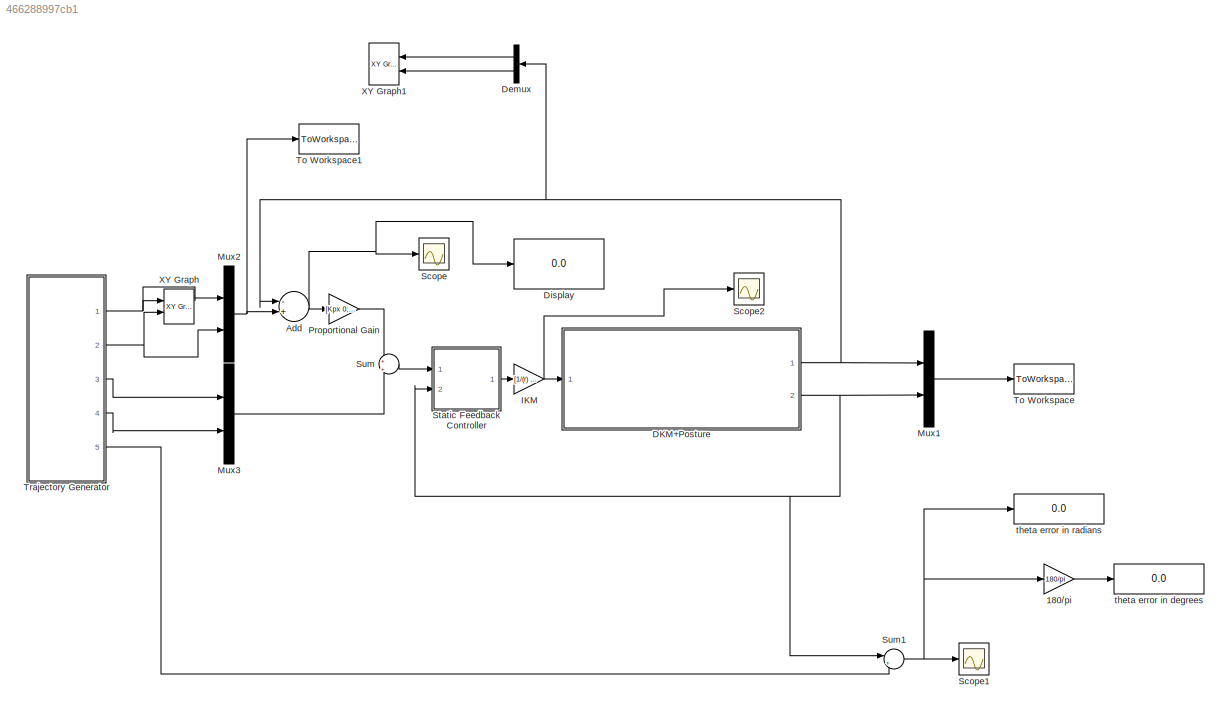
MODEL slx_466288997cb1
KIND model
CONFIG AbsTol = auto
CONFIG FixedStep = 0.01
CONFIG MaxStep = auto
CONFIG MinStep = auto
CONFIG RelTol = 1e-3
CONFIG SampleTimeConstraint = Unconstrained
CONFIG Solver = ode3
CONFIG SolverMode = Auto
CONFIG SolverName = ode3
CONFIG StartTime = 0.0
CONFIG StopTime = 30
BLOCK [Gain] 180//pi
  Gain = 180/pi
  Multiplication = Matrix(K*u)
  OutDataTypeStr = Inherit: Inherit via internal rule
  ParamDataTypeStr = Inherit: Inherit via internal rule
  SaturateOnIntegerOverflow = off
BLOCK [Sum] Add
  InputSameDT = off
  Inputs = -+
  OutDataTypeStr = Inherit: Inherit via internal rule
  Ports = [2, 1]
  SaturateOnIntegerOverflow = off
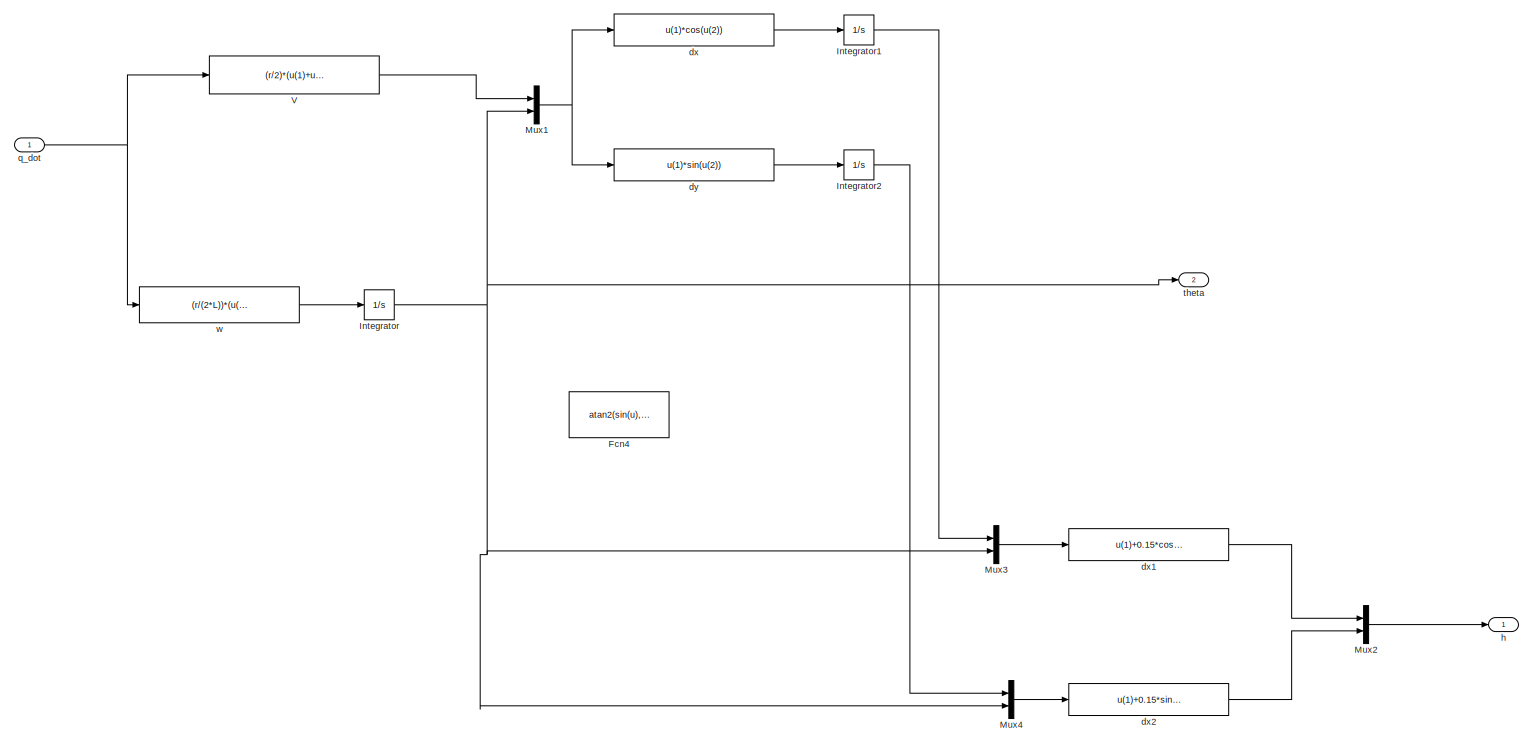
[diagram: DKM+Posture - part 1/1, most of the canvas]
BLOCK [SubSystem] DKM+Posture
  Ports = [1, 2]
  RequestExecContextInheritance = off
  Variant = off
BLOCK [Fcn] DKM+Posture/Fcn4
  Expr = atan2(sin(u),cos(u))
BLOCK [Integrator] DKM+Posture/Integrator
  InitialCondition = pi
  Ports = [1, 1]
BLOCK [Integrator] DKM+Posture/Integrator1
  InitialCondition = 2.45
  Ports = [1, 1]
BLOCK [Integrator] DKM+Posture/Integrator2
  Ports = [1, 1]
BLOCK [Mux] DKM+Posture/Mux1
  DisplayOption = bar
  Inputs = 2
  Ports = [2, 1]
BLOCK [Mux] DKM+Posture/Mux2
  DisplayOption = bar
  Inputs = 2
  Ports = [2, 1]
BLOCK [Mux] DKM+Posture/Mux3
  DisplayOption = bar
  Inputs = 2
  Ports = [2, 1]
BLOCK [Mux] DKM+Posture/Mux4
  DisplayOption = bar
  Inputs = 2
  Ports = [2, 1]
BLOCK [Fcn] DKM+Posture/V
  Expr = (r/2)*(u(1)+u(2))
BLOCK [Fcn] DKM+Posture/dx
  Expr = u(1)*cos(u(2))
BLOCK [Fcn] DKM+Posture/dx1
  Expr = u(1)+0.15*cos(u(2))
BLOCK [Fcn] DKM+Posture/dx2
  Expr = u(1)+0.15*sin(u(2))
BLOCK [Fcn] DKM+Posture/dy
  Expr = u(1)*sin(u(2))
BLOCK [Outport] DKM+Posture/h
  IconDisplay = Port number
BLOCK [Inport] DKM+Posture/q_dot
  IconDisplay = Port number
BLOCK [Outport] DKM+Posture/theta
  IconDisplay = Port number
  Port = 2
BLOCK [Fcn] DKM+Posture/w
  Expr = (r/(2*L))*(u(1)-u(2))
BLOCK [Demux] Demux
  DisplayOption = bar
  Outputs = 2
  Ports = [1, 2]
BLOCK [Display] Display
  Decimation = 1
  Ports = [1]
BLOCK [Gain] IKM
  Gain = [1/(r) L/(r);1/(r) -L/(r)]
  Multiplication = Matrix(K*u)
  OutDataTypeStr = Inherit: Inherit via internal rule
  ParamDataTypeStr = Inherit: Inherit via internal rule
  SaturateOnIntegerOverflow = off
BLOCK [Mux] Mux1
  DisplayOption = bar
  Inputs = 2
  Ports = [2, 1]
BLOCK [Mux] Mux2
  DisplayOption = bar
  Inputs = 2
  Ports = [2, 1]
BLOCK [Mux] Mux3
  DisplayOption = bar
  Inputs = 2
  Ports = [2, 1]
BLOCK [Gain] Proportional Gain
  Gain = [Kpx 0;0 Kpy]
  Multiplication = Matrix(K*u)
  OutDataTypeStr = Inherit: Inherit via internal rule
  ParamDataTypeStr = Inherit: Inherit via internal rule
  SaturateOnIntegerOverflow = off
BLOCK [Scope] Scope
  Ports = [1]
  ScopeSpecificationString = Simulink.scopes.TimeScopeBlockCfg('CurrentConfiguration', extmgr.ConfigurationSet(extmgr.Configuration('Core','General UI',true,'FigureColor',[0.156862745098039 0.156862745098039 0.156862745098039]),extmgr.Configuration('Core','Source UI',true),extmgr.Configuration('Sources','WiredSimulink',true,'DataLoggingSaveFormat','StructureWithTime','DataLoggingDecimation','1','DataLoggingDecimateData',true)...<+2783ch>
BLOCK [Scope] Scope1
  Ports = [1]
  ScopeSpecificationString = Simulink.scopes.TimeScopeBlockCfg('CurrentConfiguration', extmgr.ConfigurationSet(extmgr.Configuration('Core','General UI',true,'FigureColor',[0.156862745098039 0.156862745098039 0.156862745098039]),extmgr.Configuration('Core','Source UI',true),extmgr.Configuration('Sources','WiredSimulink',true,'DataLoggingVariableName','ScopeData1','DataLoggingSaveFormat','StructureWithTime','DataLoggingDecimati...<+2795ch>
BLOCK [Scope] Scope2
  Ports = [1]
  ScopeSpecificationString = Simulink.scopes.TimeScopeBlockCfg('CurrentConfiguration', extmgr.ConfigurationSet(extmgr.Configuration('Core','General UI',true,'FigureColor',[0.156862745098039 0.156862745098039 0.156862745098039]),extmgr.Configuration('Core','Source UI',true),extmgr.Configuration('Sources','WiredSimulink',true,'DataLoggingVariableName','ScopeData2','DataLoggingSaveFormat','StructureWithTime','DataLoggingDecimati...<+2804ch>
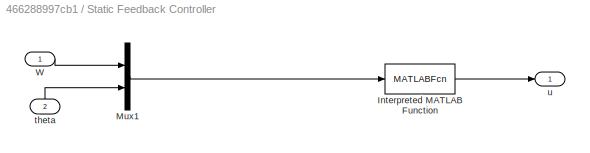
BLOCK [SubSystem] Static Feedback Controller
  Ports = [2, 1]
  RequestExecContextInheritance = off
  Variant = off
BLOCK [MATLABFcn] Static Feedback Controller/Interpreted MATLAB Function
  MATLABFcn = F_invW(u)
  Output1D = off
  OutputDimensions = [2 1]
  OutputSignalType = real
  Ports = [1, 1]
BLOCK [Mux] Static Feedback Controller/Mux1
  DisplayOption = bar
  Inputs = 2
  Ports = [2, 1]
BLOCK [Inport] Static Feedback Controller/W
  IconDisplay = Port number
BLOCK [Inport] Static Feedback Controller/theta
  IconDisplay = Port number
  Port = 2
BLOCK [Outport] Static Feedback Controller/u
  IconDisplay = Port number
BLOCK [Sum] Sum
  IconShape = round
  InputSameDT = off
  Inputs = +|+
  OutDataTypeStr = Inherit: Inherit via internal rule
  Ports = [2, 1]
  SaturateOnIntegerOverflow = off
BLOCK [Sum] Sum1
  IconShape = round
  InputSameDT = off
  Inputs = |+-
  OutDataTypeStr = Inherit: Inherit via internal rule
  Ports = [2, 1]
  SaturateOnIntegerOverflow = off
BLOCK [ToWorkspace] To Workspace
  FixptAsFi = on
  MaxDataPoints = inf
  Ports = [1]
  SampleTime = -1
  Save2DSignal = 3-D array (concatenate along third dimension)
  VariableName = output
BLOCK [ToWorkspace] To Workspace1
  FixptAsFi = on
  MaxDataPoints = inf
  Ports = [1]
  SampleTime = -1
  Save2DSignal = 3-D array (concatenate along third dimension)
  VariableName = hd
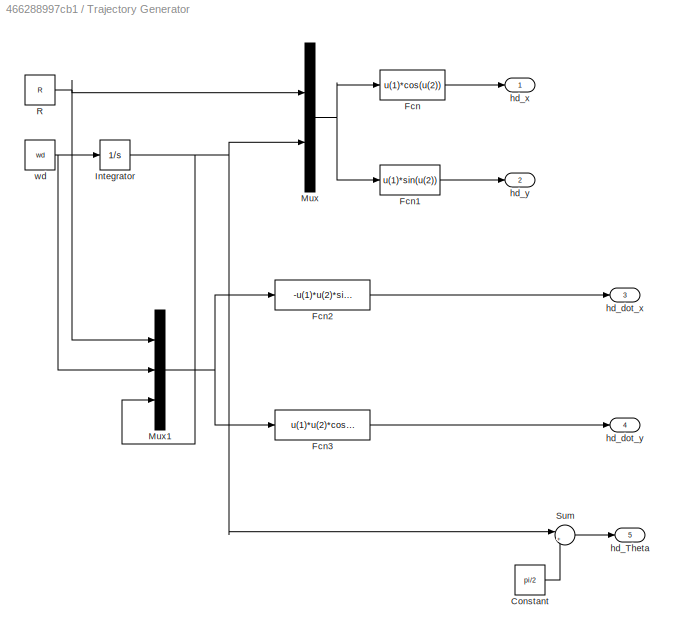
BLOCK [SubSystem] Trajectory Generator
  Ports = [0, 5]
  RequestExecContextInheritance = off
  Variant = off
BLOCK [Constant] Trajectory Generator/Constant
  Value = pi/2
BLOCK [Fcn] Trajectory Generator/Fcn
  Expr = u(1)*cos(u(2))
BLOCK [Fcn] Trajectory Generator/Fcn1
  Expr = u(1)*sin(u(2))
BLOCK [Fcn] Trajectory Generator/Fcn2
  Expr = -u(1)*u(2)*sin(u(3))
BLOCK [Fcn] Trajectory Generator/Fcn3
  Expr = u(1)*u(2)*cos(u(3))
BLOCK [Integrator] Trajectory Generator/Integrator
  Ports = [1, 1]
BLOCK [Mux] Trajectory Generator/Mux
  DisplayOption = bar
  Inputs = 2
  Ports = [2, 1]
BLOCK [Mux] Trajectory Generator/Mux1
  DisplayOption = bar
  Inputs = 3
  Ports = [3, 1]
BLOCK [Constant] Trajectory Generator/R
  Value = R
BLOCK [Sum] Trajectory Generator/Sum
  IconShape = round
  InputSameDT = off
  Inputs = |++
  OutDataTypeStr = Inherit: Inherit via internal rule
  Ports = [2, 1]
  SaturateOnIntegerOverflow = off
BLOCK [Outport] Trajectory Generator/hd_Theta
  IconDisplay = Port number
  Port = 5
BLOCK [Outport] Trajectory Generator/hd_dot_x
  IconDisplay = Port number
  Port = 3
BLOCK [Outport] Trajectory Generator/hd_dot_y
  IconDisplay = Port number
  Port = 4
BLOCK [Outport] Trajectory Generator/hd_x
  IconDisplay = Port number
BLOCK [Outport] Trajectory Generator/hd_y
  IconDisplay = Port number
  Port = 2
BLOCK [Constant] Trajectory Generator/wd
  Value = wd
BLOCK [Reference] XY Graph  REF=simulink/Sinks/XY Graph
  Ports = [2]
  SourceBlock = simulink/Sinks/XY Graph
  SourceType = XY scope.
BLOCK [Reference] XY Graph1  REF=simulink/Sinks/XY Graph
  Ports = [2]
  SourceBlock = simulink/Sinks/XY Graph
  SourceType = XY scope.
BLOCK [Display] theta error in degrees
  Decimation = 1
  Ports = [1]
BLOCK [Display] theta error in radians
  Decimation = 1
  Ports = [1]
LINE 180//pi:1 -> theta error in degrees:1
NET Add:1 -> Display:1, Proportional Gain:1, Scope:1
LINE DKM+Posture/Integrator1:1 -> DKM+Posture/Mux3:1
LINE DKM+Posture/Integrator2:1 -> DKM+Posture/Mux4:1
NET DKM+Posture/Integrator:1 -> DKM+Posture/Mux1:2, DKM+Posture/Mux3:2, DKM+Posture/Mux4:2, DKM+Posture/theta:1
NET DKM+Posture/Mux1:1 -> DKM+Posture/dx:1, DKM+Posture/dy:1
LINE DKM+Posture/Mux2:1 -> DKM+Posture/h:1
LINE DKM+Posture/Mux3:1 -> DKM+Posture/dx1:1
LINE DKM+Posture/Mux4:1 -> DKM+Posture/dx2:1
LINE DKM+Posture/V:1 -> DKM+Posture/Mux1:1
LINE DKM+Posture/dx1:1 -> DKM+Posture/Mux2:1
LINE DKM+Posture/dx2:1 -> DKM+Posture/Mux2:2
LINE DKM+Posture/dx:1 -> DKM+Posture/Integrator1:1
LINE DKM+Posture/dy:1 -> DKM+Posture/Integrator2:1
NET DKM+Posture/q_dot:1 -> DKM+Posture/V:1, DKM+Posture/w:1
LINE DKM+Posture/w:1 -> DKM+Posture/Integrator:1
NET DKM+Posture:1 -> Add:1, Demux:1, Mux1:1
NET DKM+Posture:2 -> Mux1:2, Static Feedback Controller:2, Sum1:1
LINE Demux:1 -> XY Graph1:1
LINE Demux:2 -> XY Graph1:2
NET IKM:1 -> DKM+Posture:1, Scope2:1
LINE Mux1:1 -> To Workspace:1
NET Mux2:1 -> Add:2, To Workspace1:1
LINE Mux3:1 -> Sum:2
LINE Proportional Gain:1 -> Sum:1
LINE Static Feedback Controller/Interpreted MATLAB Function:1 -> Static Feedback Controller/u:1
LINE Static Feedback Controller/Mux1:1 -> Static Feedback Controller/Interpreted MATLAB Function:1
LINE Static Feedback Controller/W:1 -> Static Feedback Controller/Mux1:1
LINE Static Feedback Controller/theta:1 -> Static Feedback Controller/Mux1:2
LINE Static Feedback Controller:1 -> IKM:1
NET Sum1:1 -> 180//pi:1, Scope1:1, theta error in radians:1
LINE Sum:1 -> Static Feedback Controller:1
LINE Trajectory Generator/Constant:1 -> Trajectory Generator/Sum:2
LINE Trajectory Generator/Fcn1:1 -> Trajectory Generator/hd_y:1
LINE Trajectory Generator/Fcn2:1 -> Trajectory Generator/hd_dot_x:1
LINE Trajectory Generator/Fcn3:1 -> Trajectory Generator/hd_dot_y:1
LINE Trajectory Generator/Fcn:1 -> Trajectory Generator/hd_x:1
NET Trajectory Generator/Integrator:1 -> Trajectory Generator/Mux1:3, Trajectory Generator/Mux:2, Trajectory Generator/Sum:1
NET Trajectory Generator/Mux1:1 -> Trajectory Generator/Fcn2:1, Trajectory Generator/Fcn3:1
NET Trajectory Generator/Mux:1 -> Trajectory Generator/Fcn1:1, Trajectory Generator/Fcn:1
NET Trajectory Generator/R:1 -> Trajectory Generator/Mux1:1, Trajectory Generator/Mux:1
LINE Trajectory Generator/Sum:1 -> Trajectory Generator/hd_Theta:1
NET Trajectory Generator/wd:1 -> Trajectory Generator/Integrator:1, Trajectory Generator/Mux1:2
NET Trajectory Generator:1 -> Mux2:1, XY Graph:1
NET Trajectory Generator:2 -> Mux2:2, XY Graph:2
LINE Trajectory Generator:3 -> Mux3:1
LINE Trajectory Generator:4 -> Mux3:2
LINE Trajectory Generator:5 -> Sum1:2
note: NET lines group one-source signal fan-out (src -> all destinations, sorted); 1:1 wires keep LINE
